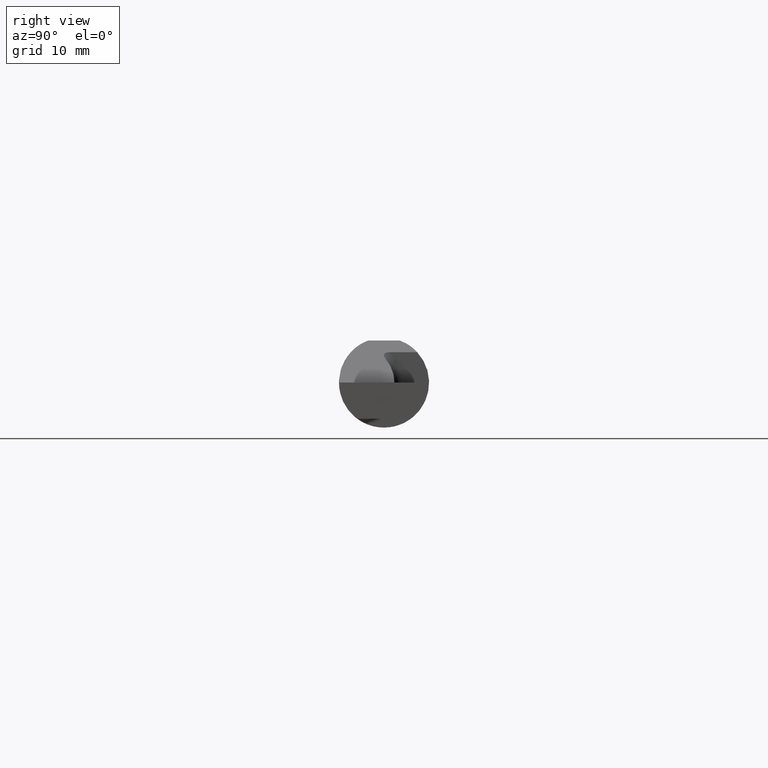
[diagram: clean part render]
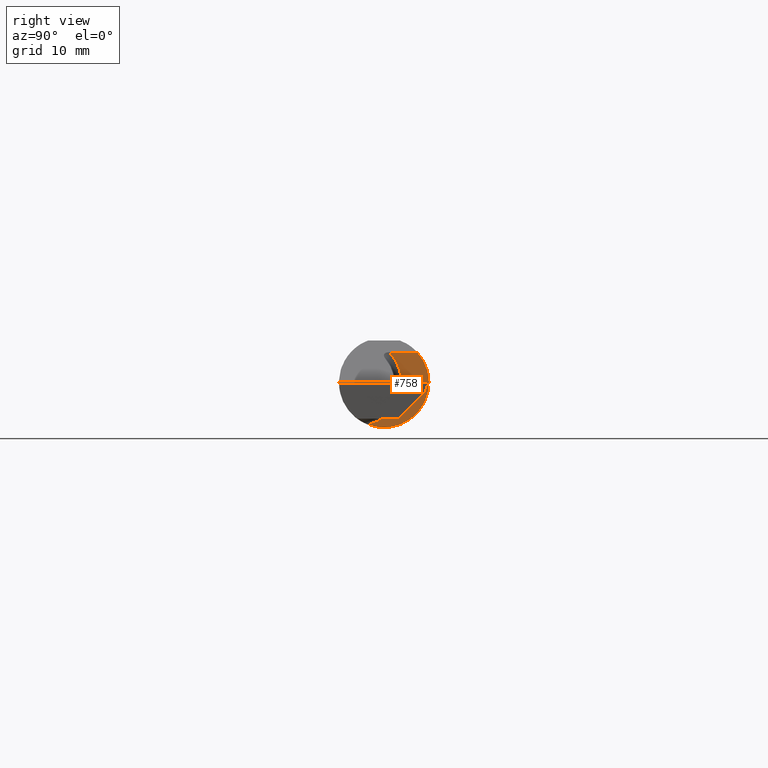
[diagram: same view with one face highlighted and labeled with its STEP entity id]
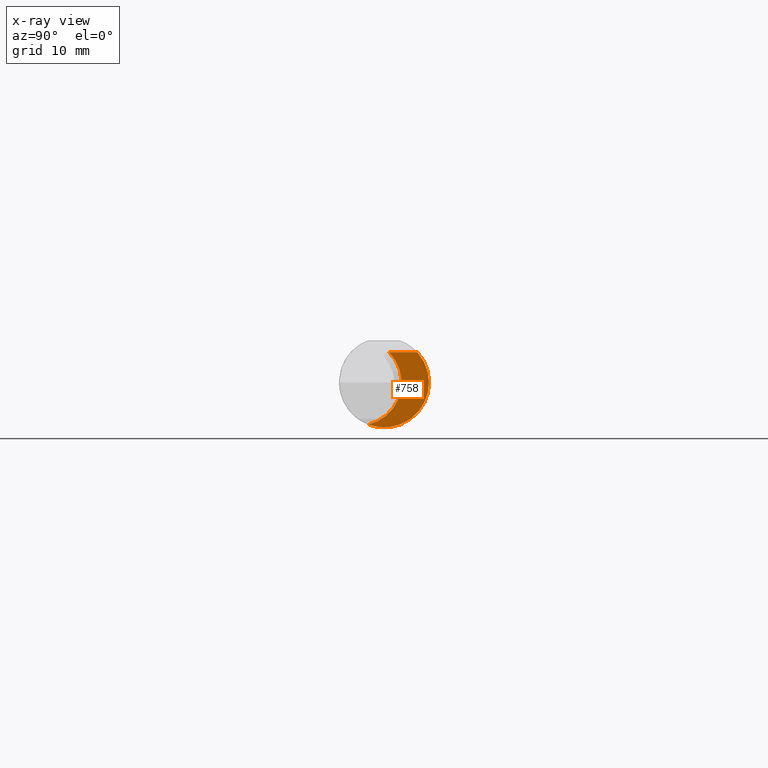
[diagram: x-ray of the same camera — body ghosted, the highlighted face saturated]
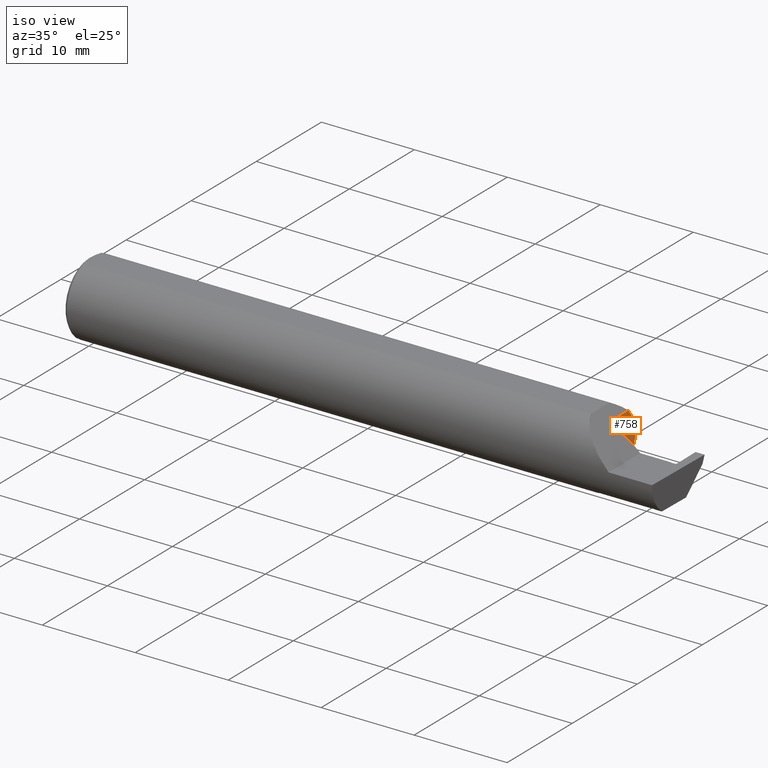
[diagram: same view with one face highlighted and labeled with its STEP entity id]
A machine part, right view. The second image highlights one B-rep face of the part: STEP entity #758.
The next image is the same camera in x-ray: the body ghosted, the highlighted face saturated — about 0% of this face is hidden behind the body in this view.
A second angle (iso view) of the same face is appended — the face is thin or edge-on in the first view.
In plain terms, the highlighted planar face has unit normal (1, 0, 0).
Its self-contained STEP definition (entity closure, byte-faithful):
#40 = PLANE ( 'NONE',  #353 ) ;
#87 = DIRECTION ( 'NONE',  ( 0.000000000000000000, -1.000000000000000000, 0.000000000000000000 ) ) ;
#95 = EDGE_CURVE ( 'NONE', #337, #238, #806, .T. ) ;
#102 = EDGE_CURVE ( 'NONE', #238, #108, #306, .T. ) ;
#108 = VERTEX_POINT ( 'NONE', #863 ) ;
#115 = DIRECTION ( 'NONE',  ( -1.000000000000000000, -0.000000000000000000, -0.000000000000000000 ) ) ;
#159 = EDGE_CURVE ( 'NONE', #108, #337, #938, .T. ) ;
#164 = DIRECTION ( 'NONE',  ( 1.000000000000000000, 0.000000000000000000, 0.000000000000000000 ) ) ;
#198 = VECTOR ( 'NONE', #87, 39.37007874015748143 ) ;
#203 = CARTESIAN_POINT ( 'NONE',  ( 2.205000000000000071, 0.1155084845368506419, 0.1050000000000006206 ) ) ;
#238 = VERTEX_POINT ( 'NONE', #611 ) ;
#251 = DIRECTION ( 'NONE',  ( 1.000000000000000000, 0.000000000000000000, 0.000000000000000000 ) ) ;
#259 = CARTESIAN_POINT ( 'NONE',  ( 2.205000000000000071, 0.2359000000000000263, 0.000000000000000000 ) ) ;
#271 = DIRECTION ( 'NONE',  ( 0.000000000000000000, 0.000000000000000000, -1.000000000000000000 ) ) ;
#276 = DIRECTION ( 'NONE',  ( 0.000000000000000000, 0.000000000000000000, 1.000000000000000000 ) ) ;
#306 = CIRCLE ( 'NONE', #634, 0.1499999999999999944 ) ;
#337 = VERTEX_POINT ( 'NONE', #203 ) ;
#345 = ORIENTED_EDGE ( 'NONE', *, *, #95, .T. ) ;
#353 = AXIS2_PLACEMENT_3D ( 'NONE', #259, #251, #558 ) ;
#407 = FACE_OUTER_BOUND ( 'NONE', #467, .T. ) ;
#467 = EDGE_LOOP ( 'NONE', ( #847, #345, #613 ) ) ;
#496 = CARTESIAN_POINT ( 'NONE',  ( 2.205000000000000515, -0.08909999999999998477, 0.000000000000000000 ) ) ;
#556 = AXIS2_PLACEMENT_3D ( 'NONE', #649, #164, #271 ) ;
#558 = DIRECTION ( 'NONE',  ( 0.000000000000000000, 0.000000000000000000, -1.000000000000000000 ) ) ;
#611 = CARTESIAN_POINT ( 'NONE',  ( 2.205000000000000515, 0.01802142642814216072, 0.1050000000000006206 ) ) ;
#613 = ORIENTED_EDGE ( 'NONE', *, *, #102, .T. ) ;
#634 = AXIS2_PLACEMENT_3D ( 'NONE', #496, #115, #276 ) ;
#649 = CARTESIAN_POINT ( 'NONE',  ( 2.205000000000000071, 0.000000000000000000, 0.000000000000000000 ) ) ;
#696 = CARTESIAN_POINT ( 'NONE',  ( 2.205000000000000071, -0.2000000000000000111, 0.1050000000000006206 ) ) ;
#758 = ADVANCED_FACE ( 'NONE', ( #407 ), #40, .T. ) ;
#806 = LINE ( 'NONE', #696, #198 ) ;
#847 = ORIENTED_EDGE ( 'NONE', *, *, #159, .T. ) ;
#863 = CARTESIAN_POINT ( 'NONE',  ( 2.205000000000000515, -0.05502817059483720158, -0.1460791239054557156 ) ) ;
#938 = CIRCLE ( 'NONE', #556, 0.1560999999999999888 ) ;